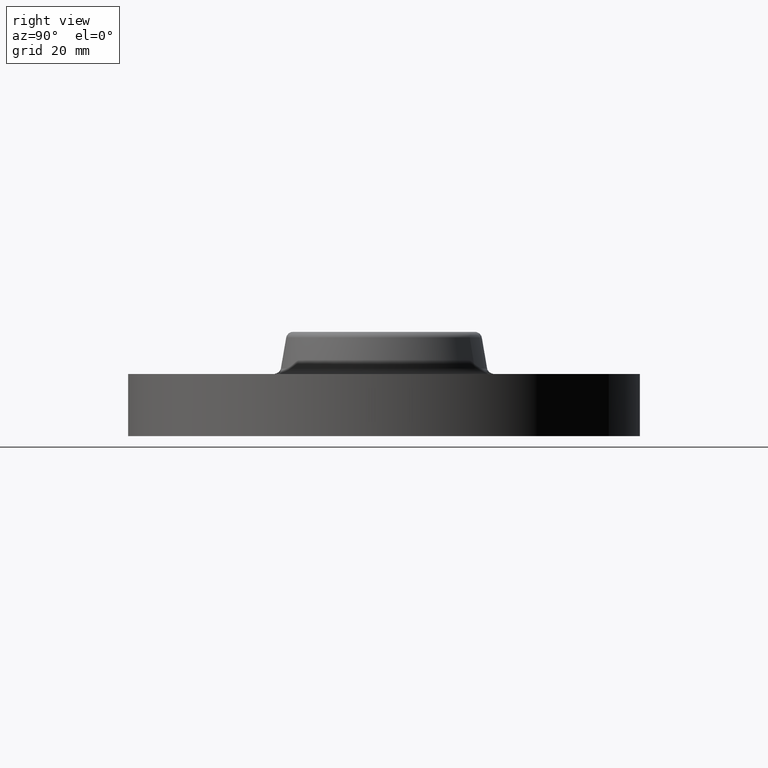
[diagram: clean part render]
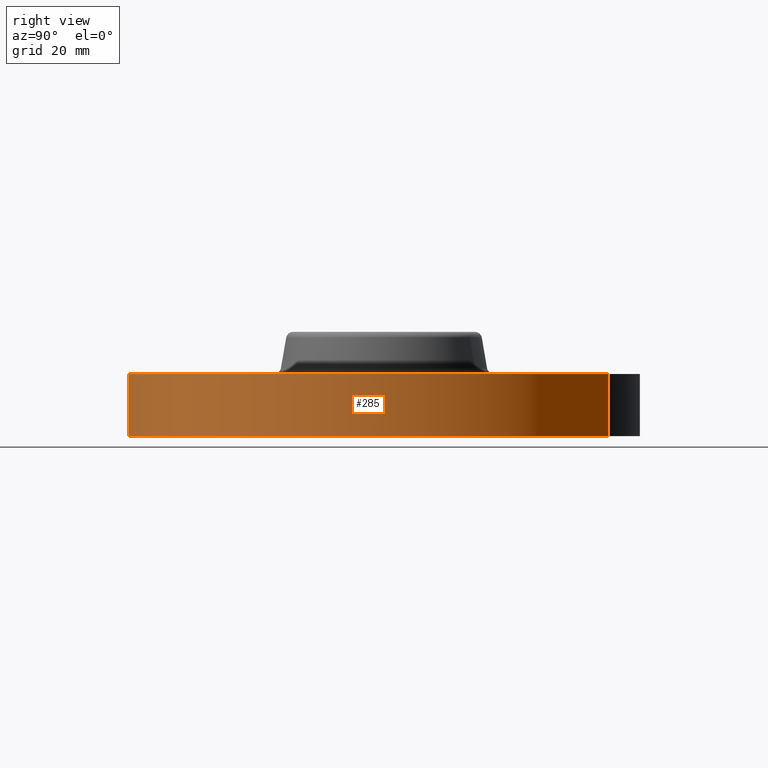
[diagram: same view with one face highlighted and labeled with its STEP entity id]
A machine part, right view. The second image highlights one B-rep face of the part: STEP entity #285.
In plain terms, the highlighted cylindrical surface (partial cylindrical patch) has radius 58.674 mm, axis along (0, 0, -1).
Its self-contained STEP definition (entity closure, byte-faithful):
#159=AXIS2_PLACEMENT_3D('Circle Axis2P3D',#157,#158,$) ;
#246=AXIS2_PLACEMENT_3D('Cylinder Axis2P3D',#243,#244,#245) ;
#276=AXIS2_PLACEMENT_3D('Circle Axis2P3D',#274,#275,$) ;
#152=CARTESIAN_POINT('Vertex',(-1.10747299418,-2.02721571797,2.79741234551E-016)) ;
#154=CARTESIAN_POINT('Vertex',(1.10747299418,2.02721571797,2.79741234551E-016)) ;
#157=CARTESIAN_POINT('Axis2P3D Location',(0.,0.,0.)) ;
#243=CARTESIAN_POINT('Axis2P3D Location',(0.,0.,0.470000000002)) ;
#248=CARTESIAN_POINT('Line Origine',(-1.10747299418,-2.02721571797,0.280000000001)) ;
#252=CARTESIAN_POINT('Vertex',(-1.10747299418,-2.02721571797,0.560000000002)) ;
#259=CARTESIAN_POINT('Vertex',(1.10747299418,2.02721571797,0.560000000002)) ;
#262=CARTESIAN_POINT('Line Origine',(1.10747299418,2.02721571797,0.280000000001)) ;
#274=CARTESIAN_POINT('Axis2P3D Location',(0.,0.,0.560000000002)) ;
#158=DIRECTION('Axis2P3D Direction',(0.,0.,-0.0393700787402)) ;
#244=DIRECTION('Axis2P3D Direction',(0.,0.,-0.0393700787402)) ;
#245=DIRECTION('Axis2P3D XDirection',(0.0188750212049,0.0345504945626,0.)) ;
#249=DIRECTION('Vector Direction',(0.,0.,-0.0393700787402)) ;
#263=DIRECTION('Vector Direction',(0.,0.,-0.0393700787402)) ;
#275=DIRECTION('Axis2P3D Direction',(0.,0.,-0.0393700787402)) ;
#250=VECTOR('Line Direction',#249,0.0393700787402) ;
#264=VECTOR('Line Direction',#263,0.0393700787402) ;
#280=ORIENTED_EDGE('',*,*,#161,.F.) ;
#281=ORIENTED_EDGE('',*,*,#266,.T.) ;
#282=ORIENTED_EDGE('',*,*,#278,.T.) ;
#283=ORIENTED_EDGE('',*,*,#254,.F.) ;
#285=ADVANCED_FACE('PartBody',(#284),#247,.T.) ;
#160=CIRCLE('generated circle',#159,2.31000000001) ;
#277=CIRCLE('generated circle',#276,2.31000000001) ;
#247=CYLINDRICAL_SURFACE('generated cylinder',#246,2.31000000001) ;
#161=EDGE_CURVE('',#155,#153,#160,.T.) ;
#254=EDGE_CURVE('',#153,#253,#251,.F.) ;
#266=EDGE_CURVE('',#155,#260,#265,.F.) ;
#278=EDGE_CURVE('',#260,#253,#277,.T.) ;
#279=EDGE_LOOP('',(#280,#281,#282,#283)) ;
#284=FACE_OUTER_BOUND('',#279,.T.) ;
#251=LINE('Line',#248,#250) ;
#265=LINE('Line',#262,#264) ;
#153=VERTEX_POINT('',#152) ;
#155=VERTEX_POINT('',#154) ;
#253=VERTEX_POINT('',#252) ;
#260=VERTEX_POINT('',#259) ;